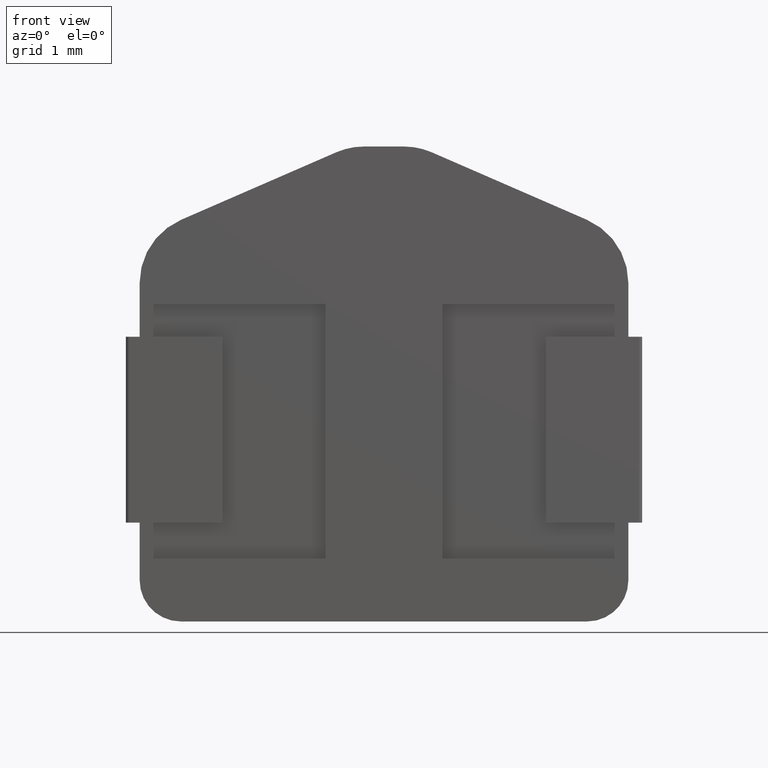
[diagram: clean part render]
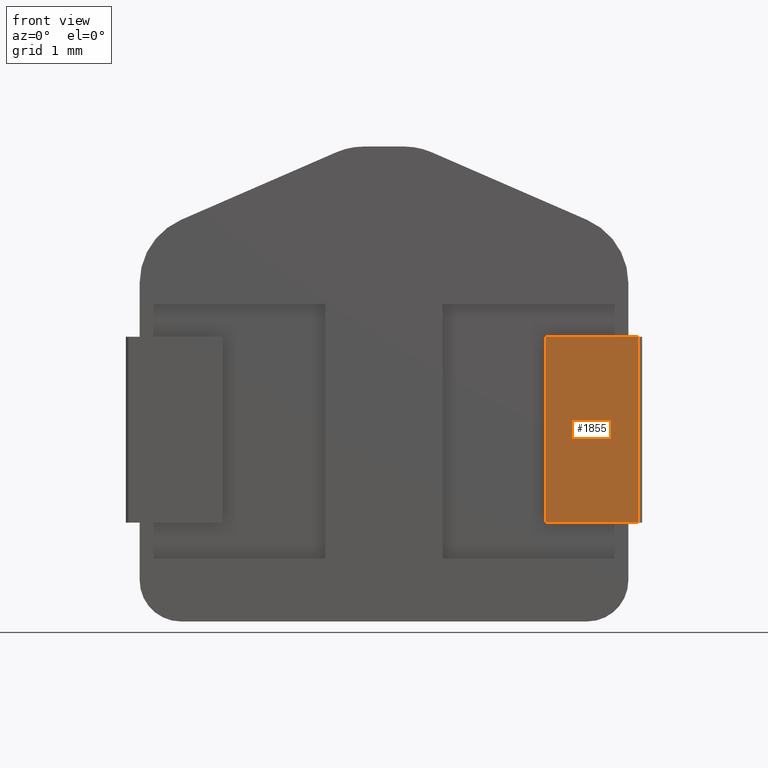
[diagram: same view with one face highlighted and labeled with its STEP entity id]
A machine part, front view. The second image highlights one B-rep face of the part: STEP entity #1855.
In plain terms, the highlighted planar face has unit normal (0, 1, -0).
Its self-contained STEP definition (entity closure, byte-faithful):
#83 = DIRECTION ( 'NONE',  ( -1.000000000000000000, 8.597901537443017800E-033, 0.0000000000000000000 ) ) ;
#196 = VECTOR ( 'NONE', #2069, 1000.000000000000000 ) ;
#502 = DIRECTION ( 'NONE',  ( -1.000000000000000000, 8.597901537443017800E-033, 0.0000000000000000000 ) ) ;
#629 = DIRECTION ( 'NONE',  ( 8.597901537443019200E-033, 1.000000000000000000, -0.0000000000000000000 ) ) ;
#799 = CARTESIAN_POINT ( 'NONE',  ( 6.159489662753303600, 0.0000000000000000000, -5.140528836854994000 ) ) ;
#1429 = AXIS2_PLACEMENT_3D ( 'NONE', #1790, #629, #2549 ) ;
#1473 = LINE ( 'NONE', #2449, #196 ) ;
#1682 = VERTEX_POINT ( 'NONE', #2686 ) ;
#1693 = EDGE_CURVE ( 'NONE', #2639, #3294, #2963, .T. ) ;
#1790 = CARTESIAN_POINT ( 'NONE',  ( 6.159489662753303600, 0.0000000000000000000, -5.140528836854994000 ) ) ;
#1855 = ADVANCED_FACE ( 'NONE', ( #3773 ), #2177, .F. ) ;
#1966 = CARTESIAN_POINT ( 'NONE',  ( 6.159489662753303600, 0.0000000000000000000, -2.440528836854994200 ) ) ;
#2069 = DIRECTION ( 'NONE',  ( 0.0000000000000000000, 0.0000000000000000000, 1.000000000000000000 ) ) ;
#2093 = ORIENTED_EDGE ( 'NONE', *, *, #3993, .F. ) ;
#2164 = CARTESIAN_POINT ( 'NONE',  ( 6.109489662753303700, 4.298950768721482200E-034, -2.440528836854994200 ) ) ;
#2177 = PLANE ( 'NONE',  #1429 ) ;
#2290 = EDGE_CURVE ( 'NONE', #2995, #1682, #2393, .T. ) ;
#2393 = LINE ( 'NONE', #799, #4490 ) ;
#2449 = CARTESIAN_POINT ( 'NONE',  ( 4.759489662753303200, 1.203706215242022400E-032, -5.140528836854994000 ) ) ;
#2459 = EDGE_CURVE ( 'NONE', #2995, #2639, #3860, .T. ) ;
#2531 = CARTESIAN_POINT ( 'NONE',  ( 6.109489662753303700, 4.298950768721482200E-034, -5.140528836854994000 ) ) ;
#2549 = DIRECTION ( 'NONE',  ( -1.000000000000000000, 8.597901537443019200E-033, 0.0000000000000000000 ) ) ;
#2639 = VERTEX_POINT ( 'NONE', #2164 ) ;
#2686 = CARTESIAN_POINT ( 'NONE',  ( 4.759489662753303200, 1.203706215242022400E-032, -5.140528836854994000 ) ) ;
#2871 = VECTOR ( 'NONE', #3633, 1000.000000000000000 ) ;
#2963 = LINE ( 'NONE', #1966, #4462 ) ;
#2995 = VERTEX_POINT ( 'NONE', #2531 ) ;
#3093 = ORIENTED_EDGE ( 'NONE', *, *, #2290, .F. ) ;
#3294 = VERTEX_POINT ( 'NONE', #4517 ) ;
#3633 = DIRECTION ( 'NONE',  ( 0.0000000000000000000, 0.0000000000000000000, 1.000000000000000000 ) ) ;
#3773 = FACE_OUTER_BOUND ( 'NONE', #3895, .T. ) ;
#3860 = LINE ( 'NONE', #4677, #2871 ) ;
#3895 = EDGE_LOOP ( 'NONE', ( #3093, #3981, #4642, #2093 ) ) ;
#3981 = ORIENTED_EDGE ( 'NONE', *, *, #2459, .T. ) ;
#3993 = EDGE_CURVE ( 'NONE', #1682, #3294, #1473, .T. ) ;
#4462 = VECTOR ( 'NONE', #502, 1000.000000000000000 ) ;
#4490 = VECTOR ( 'NONE', #83, 1000.000000000000000 ) ;
#4517 = CARTESIAN_POINT ( 'NONE',  ( 4.759489662753303200, 1.203706215242022400E-032, -2.440528836854994200 ) ) ;
#4642 = ORIENTED_EDGE ( 'NONE', *, *, #1693, .T. ) ;
#4677 = CARTESIAN_POINT ( 'NONE',  ( 6.109489662753303700, 4.298950768721483100E-034, -5.140528836854994000 ) ) ;